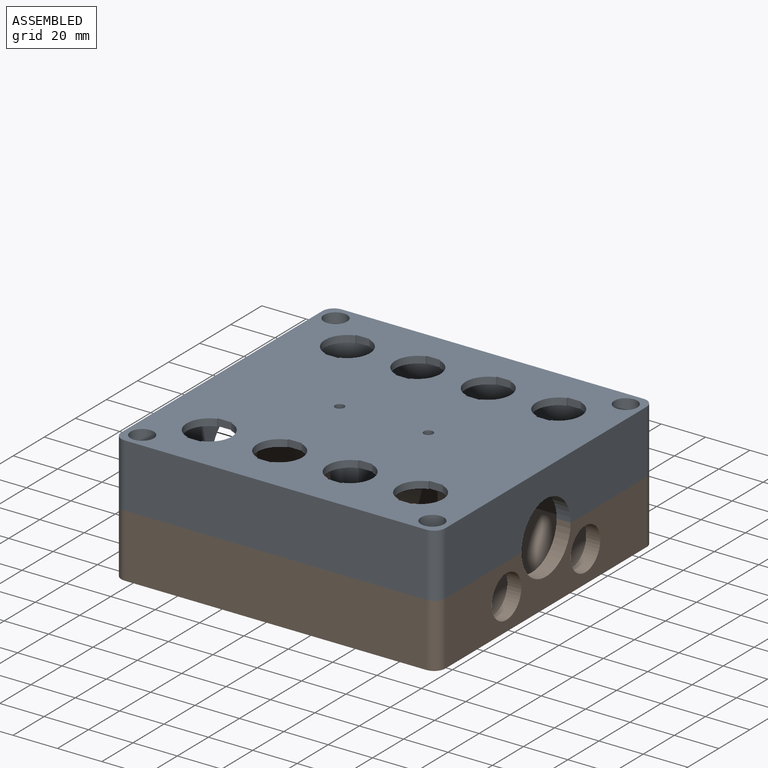
[diagram: assembled view]
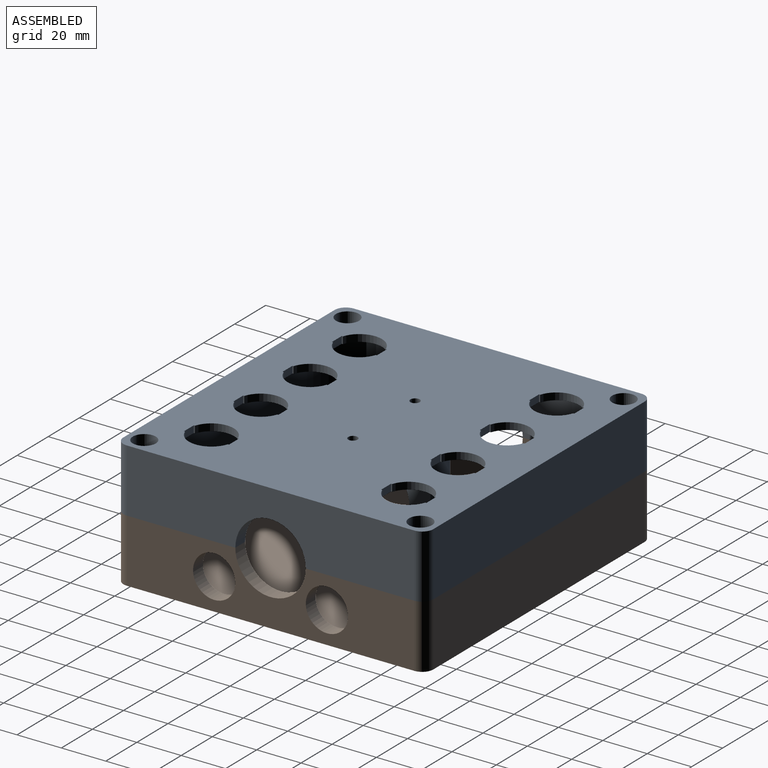
[diagram: assembled view, second angle]
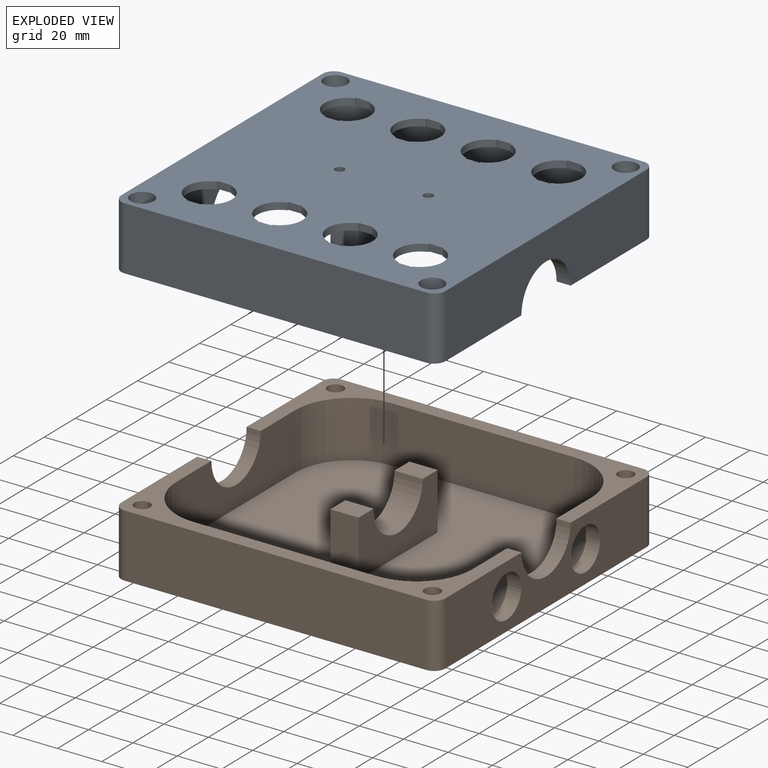
[diagram: exploded view]
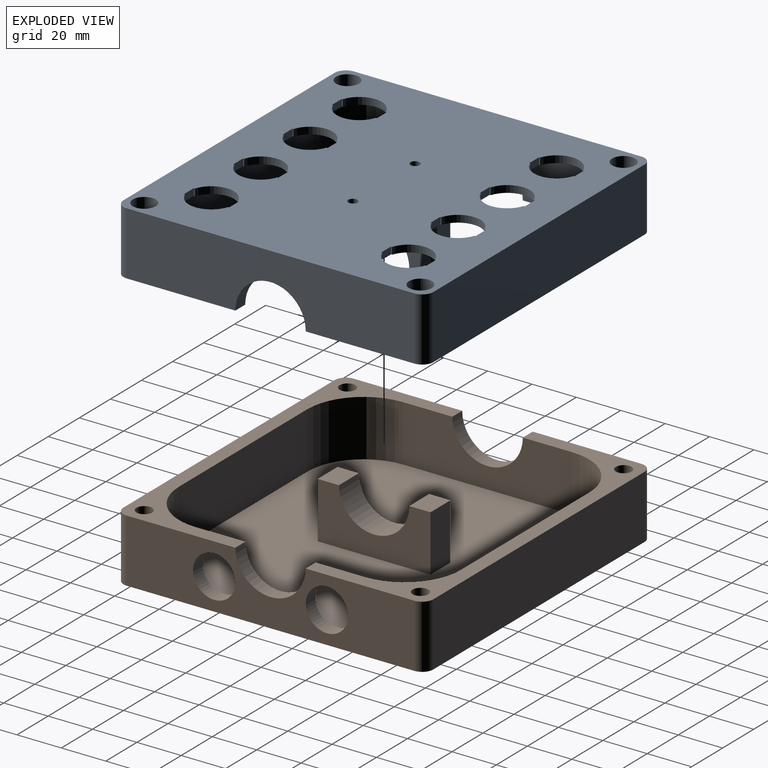
[diagram: exploded view, second angle]
ASSEMBLY  parts=2 mates=3
PART A: 107 faces, bbox 146.1x139.7x28.6 mm
  f0: cylinder r=3.56mm len=10.58mm, axis (0,0,-1), area 236.3mm2, adj f80,f100
  f1: cylinder r=3.56mm len=10.58mm, axis (0,0,-1), area 236.3mm2, adj f80,f98
  f2: cylinder r=3.56mm len=10.58mm, axis (0,0,-1), area 236.3mm2, adj f5,f96
  f3: cylinder r=3.56mm len=10.58mm, axis (0,0,-1), area 236.3mm2, adj f5,f94
  f4: plane 129.54x28.58mm, normal (1,0,0), area 3305.7mm2, adj f5,f75,f80,f88,f104,f105
  f5: plane 146.05x53.98mm, normal (0,0,1), area 1718.6mm2, adj f2,f3,f4,f63,f64,f76,f77,f79
  f6: plane 12.7x9.53mm, normal (0,0,1), area 121mm2, adj f82,f83,f84,f86
  f7: plane 3.18x0.51mm, normal (1,0,0), area 1.6mm2, adj f8,f73,f74,f75
  f8: plane 6.35x3.18mm, normal (0,-1,0), area 20.2mm2, adj f7,f9,f74,f75
  f9: plane 3.18x0.51mm, normal (-1,0,0), area 1.6mm2, adj f8,f10,f74,f75
  f10: cylinder r=10.16mm len=19.3mm, axis (0,0,-1), area 80.8mm2, adj f9,f11,f74,f75
  f11: plane 3.18x0.51mm, normal (-1,0,0), area 1.6mm2, adj f10,f12,f74,f75
  f12: plane 6.35x3.18mm, normal (0,1,0), area 20.2mm2, adj f11,f13,f74,f75
  f13: plane 3.18x0.51mm, normal (1,0,0), area 1.6mm2, adj f12,f73,f74,f75
  f14: plane 3.18x0.51mm, normal (1,0,0), area 1.6mm2, adj f15,f65,f74,f75
  f15: plane 6.35x3.18mm, normal (0,-1,0), area 20.2mm2, adj f14,f16,f74,f75
  f16: plane 3.18x0.51mm, normal (-1,0,0), area 1.6mm2, adj f15,f17,f74,f75
  f17: cylinder r=10.16mm len=19.3mm, axis (0,0,-1), area 80.8mm2, adj f16,f18,f74,f75
  f18: plane 3.18x0.51mm, normal (-1,0,0), area 1.6mm2, adj f17,f19,f74,f75
  f19: plane 6.35x3.18mm, normal (0,1,0), area 20.2mm2, adj f18,f20,f74,f75
  f20: plane 3.18x0.51mm, normal (1,0,0), area 1.6mm2, adj f19,f65,f74,f75
  f21: plane 3.18x0.51mm, normal (1,0,0), area 1.6mm2, adj f22,f66,f74,f75
  f22: plane 6.35x3.18mm, normal (0,-1,0), area 20.2mm2, adj f21,f23,f74,f75
  f23: plane 3.18x0.51mm, normal (-1,0,0), area 1.6mm2, adj f22,f24,f74,f75
  f24: cylinder r=10.16mm len=19.3mm, axis (0,0,-1), area 80.8mm2, adj f23,f25,f74,f75
  f25: plane 3.18x0.51mm, normal (-1,0,0), area 1.6mm2, adj f24,f26,f74,f75
  f26: plane 6.35x3.18mm, normal (0,1,0), area 20.2mm2, adj f25,f27,f74,f75
  f27: plane 3.18x0.51mm, normal (1,0,0), area 1.6mm2, adj f26,f66,f74,f75
  f28: plane 3.18x0.51mm, normal (1,0,0), area 1.6mm2, adj f29,f67,f74,f75
  f29: plane 6.35x3.18mm, normal (0,-1,0), area 20.2mm2, adj f28,f30,f74,f75
  f30: plane 3.18x0.51mm, normal (-1,0,0), area 1.6mm2, adj f29,f31,f74,f75
  f31: cylinder r=10.16mm len=19.3mm, axis (0,0,-1), area 80.8mm2, adj f30,f32,f74,f75
  f32: plane 3.18x0.51mm, normal (-1,0,0), area 1.6mm2, adj f31,f33,f74,f75
  f33: plane 6.35x3.18mm, normal (0,1,0), area 20.2mm2, adj f32,f34,f74,f75
  f34: plane 3.18x0.51mm, normal (1,0,0), area 1.6mm2, adj f33,f67,f74,f75
  f35: plane 3.18x0.51mm, normal (1,0,0), area 1.6mm2, adj f36,f68,f74,f75
  f36: plane 6.35x3.18mm, normal (0,-1,0), area 20.2mm2, adj f35,f37,f74,f75
  f37: plane 3.18x0.51mm, normal (-1,0,0), area 1.6mm2, adj f36,f38,f74,f75
  f38: cylinder r=10.16mm len=19.3mm, axis (0,0,-1), area 80.8mm2, adj f37,f39,f74,f75
  f39: plane 3.18x0.51mm, normal (-1,0,0), area 1.6mm2, adj f38,f40,f74,f75
  f40: plane 6.35x3.18mm, normal (0,1,0), area 20.2mm2, adj f39,f41,f74,f75
  f41: plane 3.18x0.51mm, normal (1,0,0), area 1.6mm2, adj f40,f68,f74,f75
  f42: plane 3.18x0.51mm, normal (1,0,0), area 1.6mm2, adj f43,f69,f74,f75
  f43: plane 6.35x3.18mm, normal (0,-1,0), area 20.2mm2, adj f42,f44,f74,f75
  f44: plane 3.18x0.51mm, normal (-1,0,0), area 1.6mm2, adj f43,f45,f74,f75
  f45: cylinder r=10.16mm len=19.3mm, axis (0,0,-1), area 80.8mm2, adj f44,f46,f74,f75
  f46: plane 3.18x0.51mm, normal (-1,0,0), area 1.6mm2, adj f45,f47,f74,f75
  f47: plane 6.35x3.18mm, normal (0,1,0), area 20.2mm2, adj f46,f48,f74,f75
  f48: plane 3.18x0.51mm, normal (1,0,0), area 1.6mm2, adj f47,f69,f74,f75
  f49: plane 3.18x0.51mm, normal (1,0,0), area 1.6mm2, adj f50,f70,f74,f75
  f50: plane 6.35x3.18mm, normal (0,-1,0), area 20.2mm2, adj f49,f51,f74,f75
  f51: plane 3.18x0.51mm, normal (-1,0,0), area 1.6mm2, adj f50,f52,f74,f75
  f52: cylinder r=10.16mm len=19.3mm, axis (0,0,-1), area 80.8mm2, adj f51,f53,f74,f75
  f53: plane 3.18x0.51mm, normal (-1,0,0), area 1.6mm2, adj f52,f54,f74,f75
  f54: plane 6.35x3.18mm, normal (0,1,0), area 20.2mm2, adj f53,f55,f74,f75
  f55: plane 3.18x0.51mm, normal (1,0,0), area 1.6mm2, adj f54,f70,f74,f75
  f56: cylinder r=10.16mm len=19.3mm, axis (0,0,-1), area 80.8mm2, adj f57,f71,f74,f75
  f57: plane 3.18x0.51mm, normal (1,0,0), area 1.6mm2, adj f56,f58,f74,f75
  f58: plane 6.35x3.18mm, normal (0,-1,0), area 20.2mm2, adj f57,f59,f74,f75
  f59: plane 3.18x0.51mm, normal (-1,0,0), area 1.6mm2, adj f58,f60,f74,f75
  f60: cylinder r=10.16mm len=19.3mm, axis (0,0,-1), area 80.8mm2, adj f59,f61,f74,f75
  f61: plane 3.18x0.51mm, normal (-1,0,0), area 1.6mm2, adj f60,f62,f74,f75
  f62: plane 6.35x3.18mm, normal (0,1,0), area 20.2mm2, adj f61,f71,f74,f75
  f63: plane 129.54x28.58mm, normal (-1,0,0), area 3305.7mm2, adj f5,f75,f80,f87,f103,f106
  f64: plane 135.89x28.58mm, normal (0,-1,0), area 3883.1mm2, adj f5,f75,f103,f104
  f65: cylinder r=10.16mm len=19.3mm, axis (0,0,-1), area 80.8mm2, adj f14,f20,f74,f75
  f66: cylinder r=10.16mm len=19.3mm, axis (0,0,-1), area 80.8mm2, adj f21,f27,f74,f75
  f67: cylinder r=10.16mm len=19.3mm, axis (0,0,-1), area 80.8mm2, adj f28,f34,f74,f75
  f68: cylinder r=10.16mm len=19.3mm, axis (0,0,-1), area 80.8mm2, adj f35,f41,f74,f75
  f69: cylinder r=10.16mm len=19.3mm, axis (0,0,-1), area 80.8mm2, adj f42,f48,f74,f75
  f70: cylinder r=10.16mm len=19.3mm, axis (0,0,-1), area 80.8mm2, adj f49,f55,f74,f75
  f71: plane 3.18x0.51mm, normal (1,0,0), area 1.6mm2, adj f56,f62,f74,f75
  f72: plane 135.89x28.58mm, normal (0,1,0), area 3883.1mm2, adj f75,f80,f105,f106
  f73: cylinder r=10.16mm len=19.3mm, axis (0,0,-1), area 80.8mm2, adj f7,f13,f74,f75
  f74: plane 133.35x127mm, normal (0,0,1), area 13097.4mm2, adj f7,f8,f9,f10,f11,f12,f13,f14
  f75: plane 146.05x139.7mm, normal (0,0,-1), area 17402.1mm2, adj f4,f7,f8,f9,f10,f11,f12,f13
  f76: plane 82.55x25.4mm, normal (0,1,0), area 2096.8mm2, adj f5,f74,f89,f92
  f77: plane 76.2x25.4mm, normal (1,0,0), area 1539.6mm2, adj f5,f74,f80,f87,f89,f90
  f78: plane 82.55x25.4mm, normal (0,-1,0), area 2096.8mm2, adj f74,f80,f90,f91
  f79: plane 76.2x25.4mm, normal (-1,0,0), area 1539.6mm2, adj f5,f74,f80,f88,f91,f92
  f80: plane 146.05x53.98mm, normal (0,0,1), area 1718.6mm2, adj f0,f1,f4,f63,f72,f77,f78,f79
  f81: plane 25.4x12.7mm, normal (0,1,0), area 322.6mm2, adj f74,f82,f84,f85
  f82: plane 50.8x25.4mm, normal (-1,0,0), area 894.5mm2, adj f6,f74,f81,f83,f85,f86
  f83: plane 25.4x12.7mm, normal (0,-1,0), area 322.6mm2, adj f6,f74,f82,f84
  f84: plane 50.8x25.4mm, normal (1,0,0), area 894.5mm2, adj f6,f74,f81,f83,f85,f86
  f85: plane 12.7x9.53mm, normal (0,0,1), area 121mm2, adj f81,f82,f84,f86
  f86: cylinder r=15.88mm len=31.75mm, axis (1,0,0), area 633.4mm2, adj f6,f82,f84,f85
  f87: cylinder r=15.88mm len=31.75mm, axis (1,0,0), area 316.7mm2, adj f5,f63,f77,f80
  f88: cylinder r=15.88mm len=31.75mm, axis (1,0,0), area 316.7mm2, adj f4,f5,f79,f80
  f89: cylinder r=25.4mm len=25.4mm, axis (0,0,-1), area 1013.4mm2, adj f5,f74,f76,f77
  f90: cylinder r=25.4mm len=25.4mm, axis (0,0,1), area 1013.4mm2, adj f74,f77,f78,f80
  f91: cylinder r=25.4mm len=25.4mm, axis (0,0,-1), area 1013.4mm2, adj f74,f78,f79,f80
  f92: cylinder r=25.4mm len=25.4mm, axis (0,0,1), area 1013.4mm2, adj f5,f74,f76,f79
  f93: cylinder r=5.2mm len=18mm, axis (0,0,-1), area 588.1mm2, adj f75,f94
  f94: plane 10.4x10.4mm, normal (0,0,-1), area 45.2mm2, adj f3,f93
  f95: cylinder r=5.2mm len=18mm, axis (0,0,-1), area 588.1mm2, adj f75,f96
  f96: plane 10.4x10.4mm, normal (0,0,-1), area 45.2mm2, adj f2,f95
  f97: cylinder r=5.2mm len=18mm, axis (0,0,-1), area 588.1mm2, adj f75,f98
  f98: plane 10.4x10.4mm, normal (0,0,-1), area 45.2mm2, adj f1,f97
  f99: cylinder r=5.2mm len=18mm, axis (0,0,-1), area 588.1mm2, adj f75,f100
  f100: plane 10.4x10.4mm, normal (0,0,-1), area 45.2mm2, adj f0,f99
  f101: cylinder r=2.1mm len=4.2mm, axis (0,0,-1), area 41.9mm2, adj f74,f75
  f102: cylinder r=2.1mm len=4.2mm, axis (0,0,-1), area 41.9mm2, adj f74,f75
  f103: cylinder r=5.08mm len=28.58mm, axis (0,0,1), area 228mm2, adj f5,f63,f64,f75
  f104: cylinder r=5.08mm len=28.58mm, axis (0,0,-1), area 228mm2, adj f4,f5,f64,f75
  f105: cylinder r=5.08mm len=28.58mm, axis (0,0,1), area 228mm2, adj f4,f72,f75,f80
  f106: cylinder r=5.08mm len=28.58mm, axis (0,0,-1), area 228mm2, adj f63,f72,f75,f80
PART B: 63 faces, bbox 146.1x139.7x28.6 mm
  f0: cylinder r=3.56mm len=9.53mm, axis (0,0,-1), area 212.8mm2, adj f15,f56
  f1: cylinder r=3.56mm len=9.53mm, axis (0,0,-1), area 212.8mm2, adj f15,f49
  f2: cylinder r=3.56mm len=9.53mm, axis (0,0,-1), area 212.8mm2, adj f5,f42
  f3: cylinder r=3.56mm len=9.53mm, axis (0,0,-1), area 212.8mm2, adj f5,f35
  f4: plane 129.54x28.58mm, normal (1,0,0), area 2735.7mm2, adj f5,f10,f15,f24,f57,f58,f60,f61
  f5: plane 146.05x53.98mm, normal (0,0,1), area 1718.6mm2, adj f2,f3,f4,f7,f8,f11,f12,f14
  f6: plane 12.7x9.53mm, normal (0,0,1), area 121mm2, adj f18,f19,f20,f22
  f7: plane 129.54x28.58mm, normal (-1,0,0), area 3305.7mm2, adj f5,f10,f15,f23,f59,f62
  f8: plane 135.89x28.58mm, normal (0,-1,0), area 3883.1mm2, adj f5,f10,f59,f60
  f9: plane 135.89x28.58mm, normal (0,1,0), area 3883.1mm2, adj f10,f15,f61,f62
  f10: plane 146.05x139.7mm, normal (0,0,-1), area 19986.8mm2, adj f4,f7,f8,f9,f29,f30,f31,f32
  f11: plane 82.55x25.4mm, normal (0,1,0), area 2096.8mm2, adj f5,f16,f25,f28
  f12: plane 76.2x25.4mm, normal (1,0,0), area 1539.6mm2, adj f5,f15,f16,f23,f25,f26
  f13: plane 82.55x25.4mm, normal (0,-1,0), area 2096.8mm2, adj f15,f16,f26,f27
  f14: plane 76.2x25.4mm, normal (-1,0,0), area 969.6mm2, adj f5,f15,f16,f24,f27,f28,f57,f58
  f15: plane 146.05x53.98mm, normal (0,0,1), area 1718.6mm2, adj f0,f1,f4,f7,f9,f12,f13,f14
  f16: plane 133.35x127mm, normal (0,0,1), area 15736.5mm2, adj f11,f12,f13,f14,f17,f18,f19,f20
  f17: plane 25.4x12.7mm, normal (0,1,0), area 322.6mm2, adj f16,f18,f20,f21
  f18: plane 50.8x25.4mm, normal (-1,0,0), area 894.5mm2, adj f6,f16,f17,f19,f21,f22
  f19: plane 25.4x12.7mm, normal (0,-1,0), area 322.6mm2, adj f6,f16,f18,f20
  f20: plane 50.8x25.4mm, normal (1,0,0), area 894.5mm2, adj f6,f16,f17,f19,f21,f22
  f21: plane 12.7x9.53mm, normal (0,0,1), area 121mm2, adj f17,f18,f20,f22
  f22: cylinder r=15.88mm len=31.75mm, axis (1,0,0), area 633.4mm2, adj f6,f18,f20,f21
  f23: cylinder r=15.88mm len=31.75mm, axis (1,0,0), area 316.7mm2, adj f5,f7,f12,f15
  f24: cylinder r=15.88mm len=31.75mm, axis (1,0,0), area 316.7mm2, adj f4,f5,f14,f15
  f25: cylinder r=25.4mm len=25.4mm, axis (0,0,-1), area 1013.4mm2, adj f5,f11,f12,f16
  f26: cylinder r=25.4mm len=25.4mm, axis (0,0,1), area 1013.4mm2, adj f12,f13,f15,f16
  f27: cylinder r=25.4mm len=25.4mm, axis (0,0,-1), area 1013.4mm2, adj f13,f14,f15,f16
  f28: cylinder r=25.4mm len=25.4mm, axis (0,0,1), area 1013.4mm2, adj f5,f11,f14,f16
  f29: plane 19.05x5.6mm, normal (-0.91,0.42,0), area 117.3mm2, adj f10,f30,f34,f35
  f30: plane 19.05x6.13mm, normal (-0.09,1,0), area 117.3mm2, adj f10,f29,f31,f35
  f31: plane 19.05x5.03mm, normal (0.82,0.58,0), area 117.3mm2, adj f10,f30,f32,f35
  f32: plane 19.05x5.6mm, normal (0.91,-0.42,0), area 117.3mm2, adj f10,f31,f33,f35
  f33: plane 19.05x6.13mm, normal (0.09,-1,0), area 117.3mm2, adj f10,f32,f34,f35
  f34: plane 19.05x5.03mm, normal (-0.82,-0.58,0), area 117.3mm2, adj f10,f29,f33,f35
  f35: plane 12.27x11.19mm, normal (0,0,-1), area 58.8mm2, adj f3,f29,f30,f31,f32,f33,f34
  f36: plane 19.05x5.03mm, normal (-0.82,-0.58,0), area 117.3mm2, adj f10,f37,f41,f42
  f37: plane 19.05x5.6mm, normal (-0.91,0.42,0), area 117.3mm2, adj f10,f36,f38,f42
  f38: plane 19.05x6.13mm, normal (-0.09,1,0), area 117.3mm2, adj f10,f37,f39,f42
  f39: plane 19.05x5.03mm, normal (0.82,0.58,0), area 117.3mm2, adj f10,f38,f40,f42
  f40: plane 19.05x5.6mm, normal (0.91,-0.42,0), area 117.3mm2, adj f10,f39,f41,f42
  f41: plane 19.05x6.13mm, normal (0.09,-1,0), area 117.3mm2, adj f10,f36,f40,f42
  f42: plane 12.27x11.19mm, normal (0,0,-1), area 58.8mm2, adj f2,f36,f37,f38,f39,f40,f41
  f43: plane 19.05x5.6mm, normal (-0.91,0.42,0), area 117.3mm2, adj f10,f44,f48,f49
  f44: plane 19.05x6.13mm, normal (-0.09,1,0), area 117.3mm2, adj f10,f43,f45,f49
  f45: plane 19.05x5.03mm, normal (0.82,0.58,0), area 117.3mm2, adj f10,f44,f46,f49
  f46: plane 19.05x5.6mm, normal (0.91,-0.42,0), area 117.3mm2, adj f10,f45,f47,f49
  f47: plane 19.05x6.13mm, normal (0.09,-1,0), area 117.3mm2, adj f10,f46,f48,f49
  f48: plane 19.05x5.03mm, normal (-0.82,-0.58,0), area 117.3mm2, adj f10,f43,f47,f49
  f49: plane 12.27x11.19mm, normal (0,0,-1), area 58.8mm2, adj f1,f43,f44,f45,f46,f47,f48
  f50: plane 19.05x5.6mm, normal (-0.91,0.42,0), area 117.3mm2, adj f10,f51,f55,f56
  f51: plane 19.05x6.13mm, normal (-0.09,1,0), area 117.3mm2, adj f10,f50,f52,f56
  f52: plane 19.05x5.03mm, normal (0.82,0.58,0), area 117.3mm2, adj f10,f51,f53,f56
  f53: plane 19.05x5.6mm, normal (0.91,-0.42,0), area 117.3mm2, adj f10,f52,f54,f56
  f54: plane 19.05x6.13mm, normal (0.09,-1,0), area 117.3mm2, adj f10,f53,f55,f56
  f55: plane 19.05x5.03mm, normal (-0.82,-0.58,0), area 117.3mm2, adj f10,f50,f54,f56
  f56: plane 12.27x11.19mm, normal (0,0,-1), area 58.8mm2, adj f0,f50,f51,f52,f53,f54,f55
  f57: cylinder r=9.53mm len=19.05mm, axis (1,0,0), area 380mm2, adj f4,f14
  f58: cylinder r=9.53mm len=19.05mm, axis (1,0,0), area 380mm2, adj f4,f14
  f59: cylinder r=5.08mm len=28.58mm, axis (0,0,1), area 228mm2, adj f5,f7,f8,f10
  f60: cylinder r=5.08mm len=28.58mm, axis (0,0,-1), area 228mm2, adj f4,f5,f8,f10
  f61: cylinder r=5.08mm len=28.58mm, axis (0,0,1), area 228mm2, adj f4,f9,f10,f15
  f62: cylinder r=5.08mm len=28.58mm, axis (0,0,-1), area 228mm2, adj f7,f9,f10,f15
PLACE A rot(axis=(1,0,0),180deg) t=(-131.97,129.97,54.25)mm
PLACE B rot(axis=(-0.36,-0.1,-0.93),0deg) t=(-131.97,-9.73,-2.9)mm
MATE cylindrical A.f1 <-> B.f2  axis (0,0,-1) through (-124.35,-2.11,25.67)mm
MATE cylindrical A.f1 <-> B.f2  axis (0,0,1) through (-124.35,-2.11,25.67)mm
MATE parallel A.f2 <-> B.f1  axis (0,0,-1) through (-124.35,122.35,25.67)mm
